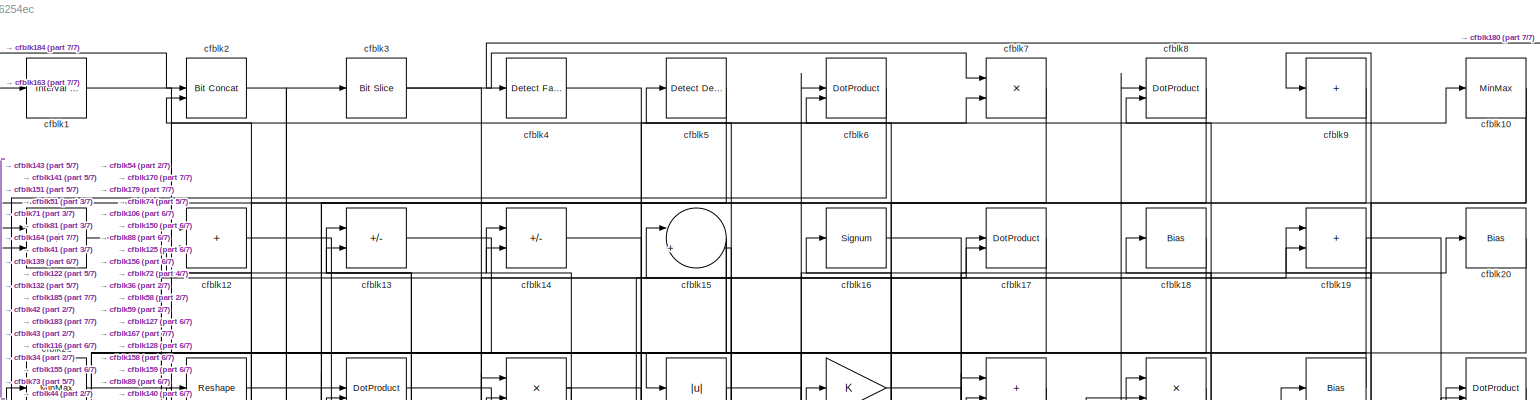
[diagram: root canvas - part 1/7, full width, top band]
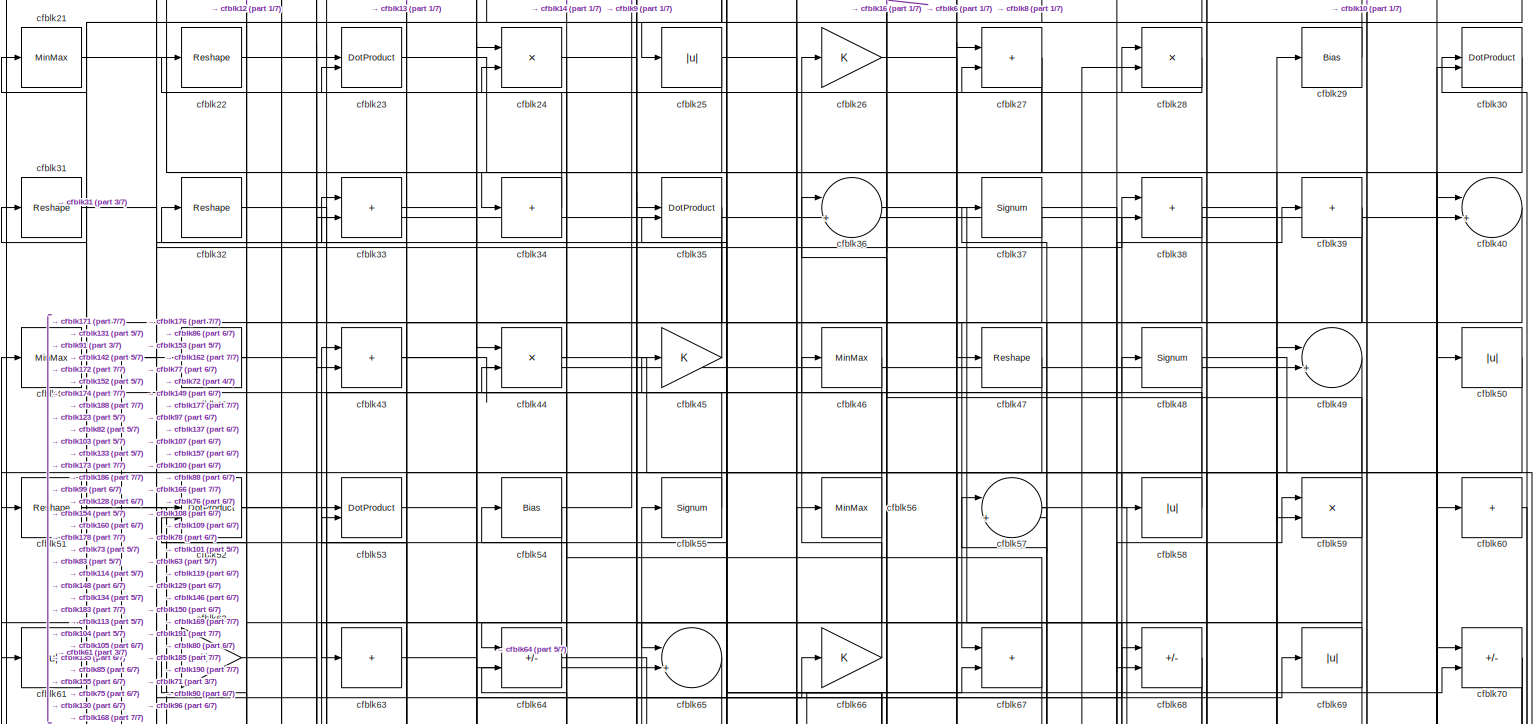
[diagram: root canvas - part 2/7, full width, top band]
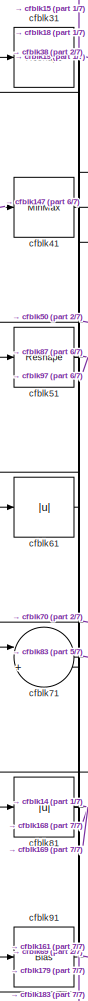
[diagram: root canvas - part 3/7, top left region]
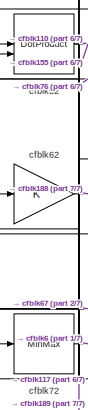
[diagram: root canvas - part 4/7, top left region]
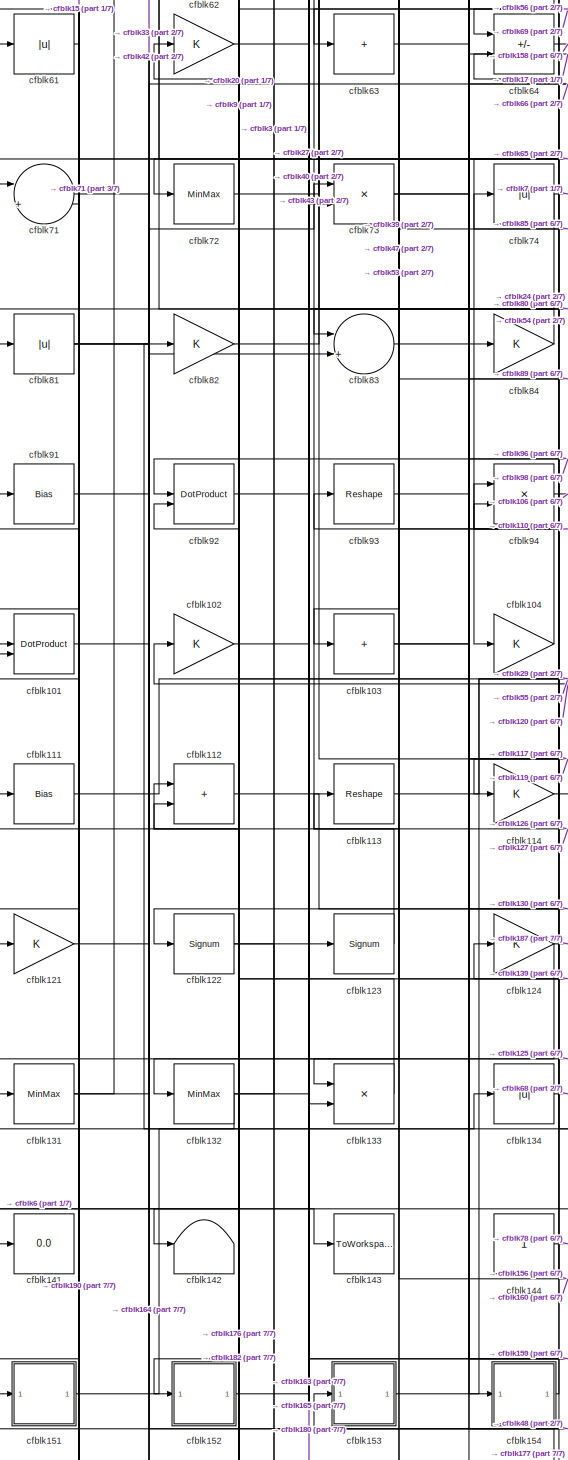
[diagram: root canvas - part 5/7, middle left region]
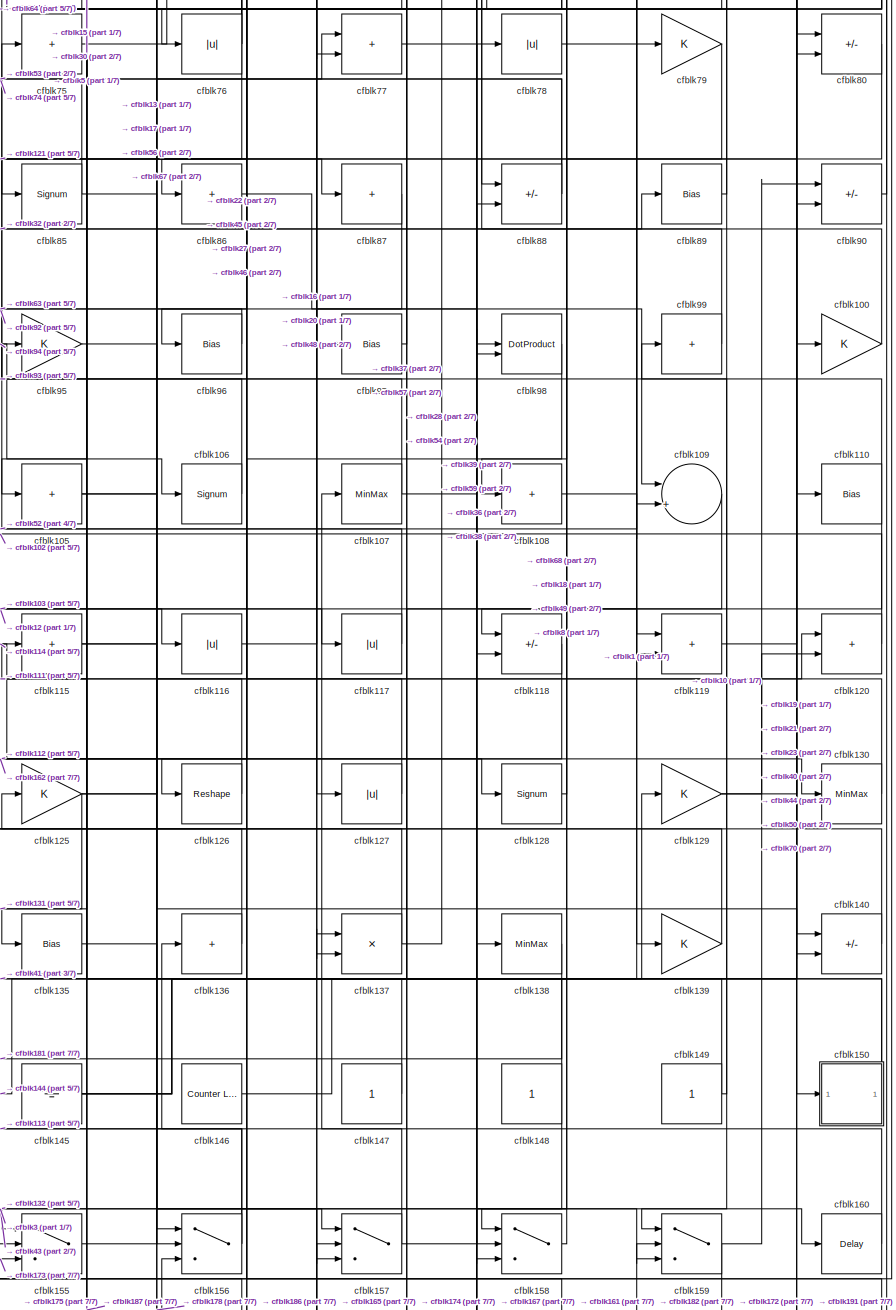
[diagram: root canvas - part 6/7, middle right region]
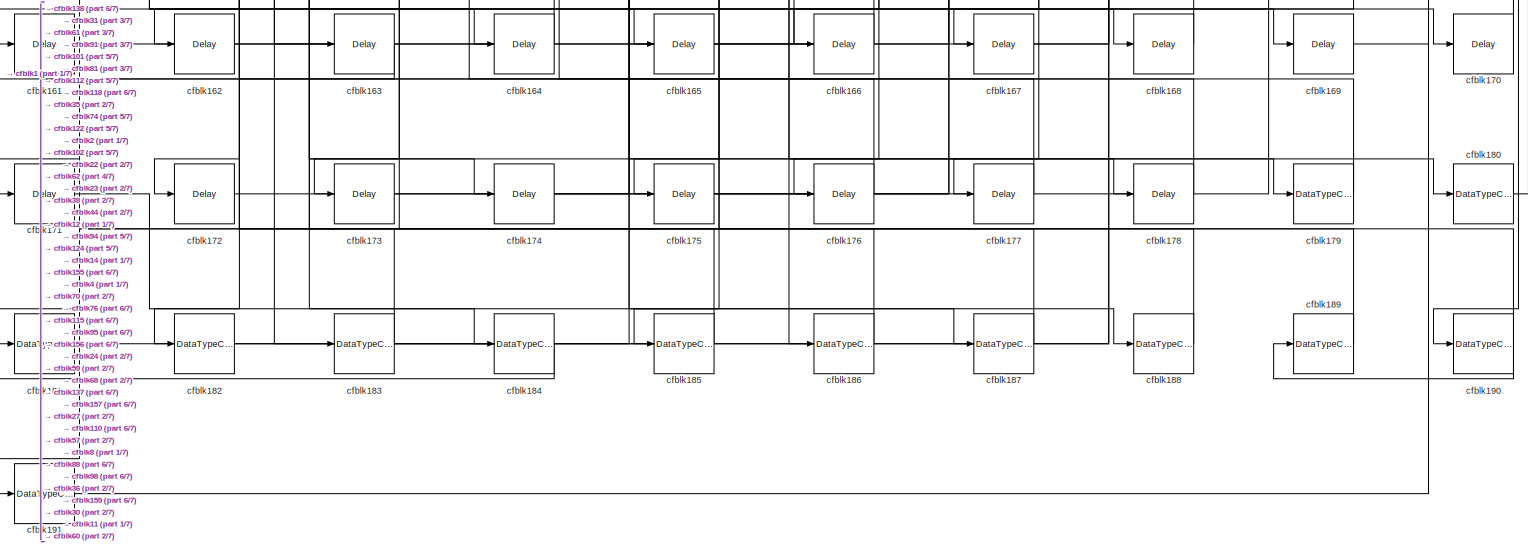
[diagram: root canvas - part 7/7, full width, bottom band]
MODEL slx_2424406254ec
KIND model
CONFIG AbsTol = auto
CONFIG EnableMultiTasking = off
CONFIG FixedStep = auto
CONFIG MaxStep = auto
CONFIG MinStep = auto
CONFIG RelTol = 1e-3
CONFIG SampleTimeConstraint = Unconstrained
CONFIG SolverName = VariableStepAuto
CONFIG StartTime = 0.0
CONFIG StopTime = 10.0
BLOCK [Reference] cfblk1  REF=hdlsllib/Logic and Bit
Operations/Interval Test
  SourceBlock = hdlsllib/Logic and Bit\nOperations/Interval Test
  SourceType = Interval Test
BLOCK [MinMax] cfblk10
BLOCK [Gain] cfblk100
BLOCK [DotProduct] cfblk101
  OutDataTypeStr = Inherit: Inherit via internal rule
BLOCK [Gain] cfblk102
BLOCK [Sum] cfblk103
  IconShape = rectangular
  Inputs = +
BLOCK [Gain] cfblk104
BLOCK [Sum] cfblk105
  IconShape = rectangular
  Inputs = +
BLOCK [Signum] cfblk106
BLOCK [MinMax] cfblk107
BLOCK [Sum] cfblk108
  IconShape = rectangular
  Inputs = +
BLOCK [Sum] cfblk109
  Inputs = |++
BLOCK [Sum] cfblk11
  IconShape = rectangular
  Inputs = +-
BLOCK [Bias] cfblk110
  Bias = 0.0
  SaturateOnIntegerOverflow = off
BLOCK [Bias] cfblk111
  Bias = 0.0
  SaturateOnIntegerOverflow = off
BLOCK [Sum] cfblk112
  IconShape = rectangular
BLOCK [Reshape] cfblk113
BLOCK [Gain] cfblk114
BLOCK [Sum] cfblk115
  IconShape = rectangular
  Inputs = +
BLOCK [Abs] cfblk116
  SaturateOnIntegerOverflow = off
BLOCK [Abs] cfblk117
  SaturateOnIntegerOverflow = off
BLOCK [Sum] cfblk118
  IconShape = rectangular
  Inputs = +-
BLOCK [Sum] cfblk119
  IconShape = rectangular
BLOCK [Sum] cfblk12
  IconShape = rectangular
BLOCK [Sum] cfblk120
  IconShape = rectangular
BLOCK [Gain] cfblk121
BLOCK [Signum] cfblk122
BLOCK [Signum] cfblk123
BLOCK [Gain] cfblk124
BLOCK [Gain] cfblk125
BLOCK [Reshape] cfblk126
BLOCK [Abs] cfblk127
  SaturateOnIntegerOverflow = off
BLOCK [Signum] cfblk128
BLOCK [Gain] cfblk129
BLOCK [Sum] cfblk13
  IconShape = rectangular
  Inputs = +-
BLOCK [MinMax] cfblk130
BLOCK [MinMax] cfblk131
BLOCK [MinMax] cfblk132
BLOCK [Product] cfblk133
  Inputs = */
  RndMeth = Zero
  SaturateOnIntegerOverflow = on
BLOCK [Abs] cfblk134
  SaturateOnIntegerOverflow = off
BLOCK [Bias] cfblk135
  Bias = 0.0
  SaturateOnIntegerOverflow = off
BLOCK [Sum] cfblk136
  IconShape = rectangular
  Inputs = +
BLOCK [Product] cfblk137
  Inputs = */
  RndMeth = Zero
  SaturateOnIntegerOverflow = on
BLOCK [MinMax] cfblk138
BLOCK [Gain] cfblk139
BLOCK [Sum] cfblk14
  IconShape = rectangular
  Inputs = +-
BLOCK [Sum] cfblk140
  IconShape = rectangular
  Inputs = +-
BLOCK [Display] cfblk141
  Decimation = 1
BLOCK [Terminator] cfblk142
BLOCK [ToWorkspace] cfblk143
  MaxDataPoints = inf
  SampleTime = -1
  SaveFormat = Timeseries
  VariableName = simout
BLOCK [Constant] cfblk144
  SampleTime = -1
BLOCK [Ground] cfblk145
BLOCK [Reference] cfblk146  REF=hdlsllib/Sources/Counter
Limited
  SourceBlock = hdlsllib/Sources/Counter\nLimited
  SourceType = Counter Limited
BLOCK [Constant] cfblk147
  SampleTime = -1
BLOCK [Constant] cfblk148
  SampleTime = -1
BLOCK [Constant] cfblk149
  SampleTime = -1
BLOCK [Sum] cfblk15
  Inputs = |++
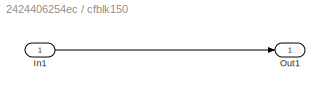
BLOCK [SubSystem] cfblk150
  LibrarySourceBlock = hdlsllib/Ports &\nSubsystems/Subsystem
BLOCK [Inport] cfblk150/In1
BLOCK [Outport] cfblk150/Out1
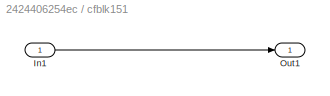
BLOCK [SubSystem] cfblk151
  LibrarySourceBlock = hdlsllib/Ports &\nSubsystems/Subsystem
BLOCK [Inport] cfblk151/In1
BLOCK [Outport] cfblk151/Out1
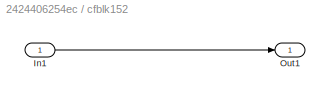
BLOCK [SubSystem] cfblk152
  LibrarySourceBlock = hdlsllib/Ports &\nSubsystems/Subsystem
BLOCK [Inport] cfblk152/In1
BLOCK [Outport] cfblk152/Out1
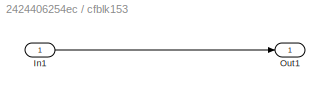
BLOCK [SubSystem] cfblk153
  LibrarySourceBlock = hdlsllib/Ports &\nSubsystems/Subsystem
BLOCK [Inport] cfblk153/In1
BLOCK [Outport] cfblk153/Out1
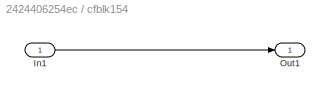
BLOCK [SubSystem] cfblk154
  LibrarySourceBlock = hdlsllib/Ports &\nSubsystems/Subsystem
BLOCK [Inport] cfblk154/In1
BLOCK [Outport] cfblk154/Out1
BLOCK [Switch] cfblk155
  InputSameDT = off
  SaturateOnIntegerOverflow = off
BLOCK [Switch] cfblk156
  InputSameDT = off
  SaturateOnIntegerOverflow = off
BLOCK [Switch] cfblk157
  InputSameDT = off
  SaturateOnIntegerOverflow = off
BLOCK [Switch] cfblk158
  InputSameDT = off
  SaturateOnIntegerOverflow = off
BLOCK [Switch] cfblk159
  InputSameDT = off
  SaturateOnIntegerOverflow = off
BLOCK [Signum] cfblk16
BLOCK [Delay] cfblk160
  InputPortMap = u0
  SampleTime = 1
BLOCK [Delay] cfblk161
  InputPortMap = u0
  SampleTime = 1
BLOCK [Delay] cfblk162
  InputPortMap = u0
  SampleTime = 1
BLOCK [Delay] cfblk163
  InputPortMap = u0
  SampleTime = 1
BLOCK [Delay] cfblk164
  InputPortMap = u0
  SampleTime = 1
BLOCK [Delay] cfblk165
  InputPortMap = u0
  SampleTime = 1
BLOCK [Delay] cfblk166
  InputPortMap = u0
  SampleTime = 1
BLOCK [Delay] cfblk167
  InputPortMap = u0
  SampleTime = 1
BLOCK [Delay] cfblk168
  InputPortMap = u0
  SampleTime = 1
BLOCK [Delay] cfblk169
  InputPortMap = u0
  SampleTime = 1
BLOCK [DotProduct] cfblk17
  OutDataTypeStr = Inherit: Inherit via internal rule
BLOCK [Delay] cfblk170
  InputPortMap = u0
  SampleTime = 1
BLOCK [Delay] cfblk171
  InputPortMap = u0
  SampleTime = 1
BLOCK [Delay] cfblk172
  InputPortMap = u0
  SampleTime = 1
BLOCK [Delay] cfblk173
  InputPortMap = u0
  SampleTime = 1
BLOCK [Delay] cfblk174
  InputPortMap = u0
  SampleTime = 1
BLOCK [Delay] cfblk175
  InputPortMap = u0
  SampleTime = 1
BLOCK [Delay] cfblk176
  InputPortMap = u0
  SampleTime = 1
BLOCK [Delay] cfblk177
  InputPortMap = u0
  SampleTime = 1
BLOCK [Delay] cfblk178
  InputPortMap = u0
  SampleTime = 1
BLOCK [DataTypeConversion] cfblk179
  OutDataTypeStr = uint8
  RndMeth = Floor
  SaturateOnIntegerOverflow = off
BLOCK [Bias] cfblk18
  Bias = 0.0
  SaturateOnIntegerOverflow = off
BLOCK [DataTypeConversion] cfblk180
  OutDataTypeStr = uint8
  RndMeth = Floor
  SaturateOnIntegerOverflow = off
BLOCK [DataTypeConversion] cfblk181
  OutDataTypeStr = uint8
  RndMeth = Floor
  SaturateOnIntegerOverflow = off
BLOCK [DataTypeConversion] cfblk182
  OutDataTypeStr = uint8
  RndMeth = Floor
  SaturateOnIntegerOverflow = off
BLOCK [DataTypeConversion] cfblk183
  RndMeth = Floor
  SaturateOnIntegerOverflow = off
BLOCK [DataTypeConversion] cfblk184
  OutDataTypeStr = uint8
  RndMeth = Floor
  SaturateOnIntegerOverflow = off
BLOCK [DataTypeConversion] cfblk185
  OutDataTypeStr = uint8
  RndMeth = Floor
  SaturateOnIntegerOverflow = off
BLOCK [DataTypeConversion] cfblk186
  OutDataTypeStr = uint8
  RndMeth = Floor
  SaturateOnIntegerOverflow = off
BLOCK [DataTypeConversion] cfblk187
  OutDataTypeStr = uint8
  RndMeth = Floor
  SaturateOnIntegerOverflow = off
BLOCK [DataTypeConversion] cfblk188
  OutDataTypeStr = uint8
  RndMeth = Floor
  SaturateOnIntegerOverflow = off
BLOCK [DataTypeConversion] cfblk189
  OutDataTypeStr = uint8
  RndMeth = Floor
  SaturateOnIntegerOverflow = off
BLOCK [Sum] cfblk19
  IconShape = rectangular
BLOCK [DataTypeConversion] cfblk190
  RndMeth = Floor
  SaturateOnIntegerOverflow = off
BLOCK [DataTypeConversion] cfblk191
  OutDataTypeStr = uint8
  RndMeth = Floor
  SaturateOnIntegerOverflow = off
BLOCK [Reference] cfblk2  REF=hdlsllib/Logic and Bit
Operations/Bit Concat
  SourceBlock = hdlsllib/Logic and Bit\nOperations/Bit Concat
  SourceType = Bit Concat
BLOCK [Bias] cfblk20
  Bias = 0.0
  SaturateOnIntegerOverflow = off
BLOCK [MinMax] cfblk21
BLOCK [Reshape] cfblk22
BLOCK [DotProduct] cfblk23
  OutDataTypeStr = Inherit: Inherit via internal rule
BLOCK [Product] cfblk24
  Inputs = */
  RndMeth = Zero
  SaturateOnIntegerOverflow = on
BLOCK [Abs] cfblk25
  SaturateOnIntegerOverflow = off
BLOCK [Gain] cfblk26
BLOCK [Sum] cfblk27
  IconShape = rectangular
BLOCK [Product] cfblk28
  Inputs = */
  RndMeth = Zero
  SaturateOnIntegerOverflow = on
BLOCK [Bias] cfblk29
  Bias = 0.0
  SaturateOnIntegerOverflow = off
BLOCK [Reference] cfblk3  REF=hdlsllib/Logic and Bit
Operations/Bit Slice
  SourceBlock = hdlsllib/Logic and Bit\nOperations/Bit Slice
  SourceType = Bit Slice
BLOCK [DotProduct] cfblk30
  OutDataTypeStr = Inherit: Inherit via internal rule
BLOCK [Reshape] cfblk31
BLOCK [Reshape] cfblk32
BLOCK [Sum] cfblk33
  IconShape = rectangular
BLOCK [Sum] cfblk34
  IconShape = rectangular
  Inputs = +
BLOCK [DotProduct] cfblk35
  OutDataTypeStr = Inherit: Inherit via internal rule
BLOCK [Sum] cfblk36
  Inputs = |++
BLOCK [Signum] cfblk37
BLOCK [Sum] cfblk38
  IconShape = rectangular
BLOCK [Sum] cfblk39
  IconShape = rectangular
  Inputs = +
BLOCK [Reference] cfblk4  REF=hdlsllib/Logic and Bit
Operations/Detect Fall
Negative
  SourceBlock = hdlsllib/Logic and Bit\nOperations/Detect Fall\nNegative
  SourceType = Detect Fall Negative
BLOCK [Sum] cfblk40
  Inputs = |++
BLOCK [MinMax] cfblk41
BLOCK [Sum] cfblk42
  IconShape = rectangular
  Inputs = +
BLOCK [Sum] cfblk43
  IconShape = rectangular
BLOCK [Product] cfblk44
  Inputs = */
  RndMeth = Zero
  SaturateOnIntegerOverflow = on
BLOCK [Gain] cfblk45
BLOCK [MinMax] cfblk46
BLOCK [Reshape] cfblk47
BLOCK [Signum] cfblk48
BLOCK [Sum] cfblk49
  Inputs = |++
BLOCK [Reference] cfblk5  REF=simulink/Logic and Bit
Operations/Detect
Decrease
  LibrarySourceBlock = hdlsllib/Logic and Bit\nOperations/Detect\nDecrease
  SourceBlock = simulink/Logic and Bit\nOperations/Detect\nDecrease
  SourceType = Detect Decrease
BLOCK [Abs] cfblk50
  SaturateOnIntegerOverflow = off
BLOCK [Reshape] cfblk51
BLOCK [DotProduct] cfblk52
  OutDataTypeStr = Inherit: Inherit via internal rule
BLOCK [DotProduct] cfblk53
  OutDataTypeStr = Inherit: Inherit via internal rule
BLOCK [Bias] cfblk54
  Bias = 0.0
  SaturateOnIntegerOverflow = off
BLOCK [Signum] cfblk55
BLOCK [MinMax] cfblk56
BLOCK [Sum] cfblk57
  Inputs = |++
BLOCK [Abs] cfblk58
  SaturateOnIntegerOverflow = off
BLOCK [Product] cfblk59
  Inputs = */
  RndMeth = Zero
  SaturateOnIntegerOverflow = on
BLOCK [DotProduct] cfblk6
  OutDataTypeStr = Inherit: Inherit via internal rule
BLOCK [Sum] cfblk60
  IconShape = rectangular
  Inputs = +
BLOCK [Abs] cfblk61
  SaturateOnIntegerOverflow = off
BLOCK [Gain] cfblk62
BLOCK [Sum] cfblk63
  IconShape = rectangular
  Inputs = +
BLOCK [Sum] cfblk64
  IconShape = rectangular
  Inputs = +-
BLOCK [Sum] cfblk65
  Inputs = |++
BLOCK [Gain] cfblk66
BLOCK [Sum] cfblk67
  IconShape = rectangular
BLOCK [Sum] cfblk68
  IconShape = rectangular
  Inputs = +-
BLOCK [Abs] cfblk69
  SaturateOnIntegerOverflow = off
BLOCK [Product] cfblk7
  Inputs = */
  RndMeth = Zero
  SaturateOnIntegerOverflow = on
BLOCK [Sum] cfblk70
  IconShape = rectangular
  Inputs = +-
BLOCK [Sum] cfblk71
  Inputs = |++
BLOCK [MinMax] cfblk72
BLOCK [Product] cfblk73
  Inputs = */
  RndMeth = Zero
  SaturateOnIntegerOverflow = on
BLOCK [Abs] cfblk74
  SaturateOnIntegerOverflow = off
BLOCK [Sum] cfblk75
  IconShape = rectangular
  Inputs = +
BLOCK [Abs] cfblk76
  SaturateOnIntegerOverflow = off
BLOCK [Sum] cfblk77
  IconShape = rectangular
BLOCK [Abs] cfblk78
  SaturateOnIntegerOverflow = off
BLOCK [Gain] cfblk79
BLOCK [DotProduct] cfblk8
  OutDataTypeStr = Inherit: Inherit via internal rule
BLOCK [Sum] cfblk80
  IconShape = rectangular
  Inputs = +-
BLOCK [Abs] cfblk81
  SaturateOnIntegerOverflow = off
BLOCK [Gain] cfblk82
BLOCK [Sum] cfblk83
  Inputs = |++
BLOCK [Gain] cfblk84
BLOCK [Signum] cfblk85
BLOCK [Sum] cfblk86
  IconShape = rectangular
  Inputs = +
BLOCK [Sum] cfblk87
  IconShape = rectangular
  Inputs = +
BLOCK [Sum] cfblk88
  IconShape = rectangular
  Inputs = +-
BLOCK [Bias] cfblk89
  Bias = 0.0
  SaturateOnIntegerOverflow = off
BLOCK [Sum] cfblk9
  IconShape = rectangular
  Inputs = +
BLOCK [Sum] cfblk90
  IconShape = rectangular
  Inputs = +-
BLOCK [Bias] cfblk91
  Bias = 0.0
  SaturateOnIntegerOverflow = off
BLOCK [DotProduct] cfblk92
  OutDataTypeStr = Inherit: Inherit via internal rule
BLOCK [Reshape] cfblk93
BLOCK [Product] cfblk94
  Inputs = */
  RndMeth = Zero
  SaturateOnIntegerOverflow = on
BLOCK [Gain] cfblk95
BLOCK [Bias] cfblk96
  Bias = 0.0
  SaturateOnIntegerOverflow = off
BLOCK [Bias] cfblk97
  Bias = 0.0
  SaturateOnIntegerOverflow = off
BLOCK [DotProduct] cfblk98
  OutDataTypeStr = Inherit: Inherit via internal rule
BLOCK [Sum] cfblk99
  IconShape = rectangular
  Inputs = +
LINE cfblk100:1 -> cfblk38:1
LINE cfblk101:1 -> cfblk164:1
LINE cfblk102:1 -> cfblk165:1
NET cfblk103:1 -> cfblk117:1, cfblk119:2
LINE cfblk104:1 -> cfblk53:1
NET cfblk105:1 -> cfblk140:2, cfblk56:1
LINE cfblk106:1 -> cfblk5:1
NET cfblk107:1 -> cfblk59:1, cfblk75:1
LINE cfblk108:1 -> cfblk119:1
LINE cfblk109:1 -> cfblk118:1
NET cfblk10:1 -> cfblk159:1, cfblk43:2
NET cfblk110:1 -> cfblk167:1, cfblk93:1
LINE cfblk111:1 -> cfblk84:1
LINE cfblk112:1 -> cfblk130:1
LINE cfblk113:1 -> cfblk55:1
LINE cfblk114:1 -> cfblk156:2
NET cfblk115:1 -> cfblk178:1, cfblk77:1
LINE cfblk116:1 -> cfblk20:1
LINE cfblk117:1 -> cfblk52:1
LINE cfblk118:1 -> cfblk162:1
LINE cfblk119:1 -> cfblk50:1
LINE cfblk11:1 -> cfblk10:1
LINE cfblk120:1 -> cfblk102:1
LINE cfblk121:1 -> cfblk73:1
NET cfblk122:1 -> cfblk163:1, cfblk180:1
LINE cfblk123:1 -> cfblk43:1
NET cfblk124:1 -> cfblk152:1, cfblk187:1
NET cfblk125:1 -> cfblk120:1, cfblk131:1, cfblk17:2
LINE cfblk126:1 -> cfblk111:1
LINE cfblk127:1 -> cfblk94:1
LINE cfblk128:1 -> cfblk18:1
NET cfblk129:1 -> cfblk120:2, cfblk70:1
LINE cfblk12:1 -> cfblk116:1
LINE cfblk130:1 -> cfblk46:1
NET cfblk131:1 -> cfblk33:2, cfblk42:1
NET cfblk132:1 -> cfblk159:3, cfblk3:1, cfblk82:1
LINE cfblk133:1 -> cfblk92:2
LINE cfblk134:1 -> cfblk68:1
LINE cfblk135:1 -> cfblk157:1
LINE cfblk136:1 -> cfblk125:1
NET cfblk137:1 -> cfblk28:2, cfblk54:1
LINE cfblk138:1 -> cfblk181:1
LINE cfblk139:1 -> cfblk112:1
LINE cfblk13:1 -> cfblk156:1
LINE cfblk140:1 -> cfblk13:1
LINE cfblk144:1 -> cfblk78:1
NET cfblk145:1 -> cfblk129:1, cfblk79:1, cfblk90:2
LINE cfblk146:1 -> cfblk40:1
LINE cfblk147:1 -> cfblk41:1
NET cfblk148:1 -> cfblk158:3, cfblk44:2
NET cfblk149:1 -> cfblk57:1, cfblk99:1
LINE cfblk14:1 -> cfblk170:1
LINE cfblk150/In1:1 -> cfblk150/Out1:1
NET cfblk150:1 -> cfblk115:1, cfblk15:2
LINE cfblk151/In1:1 -> cfblk151/Out1:1
LINE cfblk151:1 -> cfblk134:1
LINE cfblk152/In1:1 -> cfblk152/Out1:1
LINE cfblk152:1 -> cfblk40:2
LINE cfblk153/In1:1 -> cfblk153/Out1:1
LINE cfblk153:1 -> cfblk29:1
LINE cfblk154/In1:1 -> cfblk154/Out1:1
LINE cfblk154:1 -> cfblk124:1
LINE cfblk155:1 -> cfblk70:2
NET cfblk156:1 -> cfblk113:1, cfblk136:1
NET cfblk157:1 -> cfblk107:1, cfblk39:1
LINE cfblk158:1 -> cfblk8:2
NET cfblk159:1 -> cfblk191:1, cfblk90:1
NET cfblk15:1 -> cfblk151:1, cfblk51:1
LINE cfblk160:1 -> cfblk64:2
LINE cfblk161:1 -> cfblk88:2
LINE cfblk162:1 -> cfblk27:1
LINE cfblk163:1 -> cfblk1:1
LINE cfblk164:1 -> cfblk12:1
LINE cfblk165:1 -> cfblk156:3
LINE cfblk166:1 -> cfblk24:1
LINE cfblk167:1 -> cfblk8:1
LINE cfblk168:1 -> cfblk36:1
LINE cfblk169:1 -> cfblk30:2
LINE cfblk16:1 -> cfblk127:1
LINE cfblk170:1 -> cfblk11:1
LINE cfblk171:1 -> cfblk184:1
LINE cfblk172:1 -> cfblk159:2
LINE cfblk173:1 -> cfblk155:3
LINE cfblk174:1 -> cfblk137:1
LINE cfblk175:1 -> cfblk157:2
LINE cfblk176:1 -> cfblk112:2
LINE cfblk177:1 -> cfblk94:2
LINE cfblk178:1 -> cfblk44:1
LINE cfblk179:1 -> cfblk91:1
LINE cfblk17:1 -> cfblk141:1
LINE cfblk180:1 -> cfblk4:1
LINE cfblk181:1 -> cfblk98:1
LINE cfblk182:1 -> cfblk138:1
NET cfblk183:1 -> cfblk31:1, cfblk35:1
LINE cfblk184:1 -> cfblk2:1
LINE cfblk185:1 -> cfblk2:2
LINE cfblk186:1 -> cfblk23:2
LINE cfblk187:1 -> cfblk95:1
LINE cfblk188:1 -> cfblk23:1
LINE cfblk189:1 -> cfblk62:1
LINE cfblk18:1 -> cfblk71:1
NET cfblk190:1 -> cfblk101:2, cfblk189:1
LINE cfblk191:1 -> cfblk60:1
NET cfblk19:1 -> cfblk140:1, cfblk81:1
LINE cfblk1:1 -> cfblk139:1
LINE cfblk20:1 -> cfblk122:1
LINE cfblk21:1 -> cfblk80:2
LINE cfblk22:1 -> cfblk174:1
LINE cfblk23:1 -> cfblk80:1
NET cfblk24:1 -> cfblk114:1, cfblk68:2
NET cfblk25:1 -> cfblk34:1, cfblk58:1
LINE cfblk26:1 -> cfblk47:1
NET cfblk27:1 -> cfblk133:2, cfblk86:1
LINE cfblk28:1 -> cfblk27:2
LINE cfblk29:1 -> cfblk25:1
LINE cfblk2:1 -> cfblk183:1
LINE cfblk30:1 -> cfblk85:1
LINE cfblk31:1 -> cfblk38:2
LINE cfblk32:1 -> cfblk67:1
LINE cfblk33:1 -> cfblk154:1
LINE cfblk34:1 -> cfblk13:2
NET cfblk35:1 -> cfblk171:1, cfblk172:1
LINE cfblk36:1 -> cfblk88:1
NET cfblk37:1 -> cfblk135:1, cfblk59:2
NET cfblk38:1 -> cfblk109:2, cfblk173:1
NET cfblk39:1 -> cfblk103:1, cfblk57:2
NET cfblk3:1 -> cfblk155:1, cfblk7:1
LINE cfblk40:1 -> cfblk65:1
LINE cfblk41:1 -> cfblk19:2
NET cfblk42:1 -> cfblk12:2, cfblk28:1
NET cfblk43:1 -> cfblk160:1, cfblk49:2
NET cfblk44:1 -> cfblk14:1, cfblk150:1
LINE cfblk45:1 -> cfblk33:1
LINE cfblk46:1 -> cfblk105:1
LINE cfblk47:1 -> cfblk133:1
NET cfblk48:1 -> cfblk153:1, cfblk77:2
LINE cfblk49:1 -> cfblk108:1
LINE cfblk4:1 -> cfblk179:1
LINE cfblk50:1 -> cfblk61:1
NET cfblk51:1 -> cfblk87:1, cfblk97:1
NET cfblk52:1 -> cfblk110:1, cfblk155:2
LINE cfblk53:1 -> cfblk128:1
NET cfblk54:1 -> cfblk142:1, cfblk9:1
LINE cfblk55:1 -> cfblk21:1
NET cfblk56:1 -> cfblk35:2, cfblk64:1
NET cfblk57:1 -> cfblk100:1, cfblk177:1
LINE cfblk58:1 -> cfblk16:1
NET cfblk59:1 -> cfblk176:1, cfblk6:2
LINE cfblk5:1 -> cfblk11:2
LINE cfblk60:1 -> cfblk190:1
LINE cfblk61:1 -> cfblk161:1
LINE cfblk62:1 -> cfblk188:1
LINE cfblk63:1 -> cfblk98:2
LINE cfblk64:1 -> cfblk158:2
LINE cfblk65:1 -> cfblk104:1
LINE cfblk66:1 -> cfblk26:1
NET cfblk67:1 -> cfblk24:2, cfblk72:1
NET cfblk68:1 -> cfblk166:1, cfblk76:1
NET cfblk69:1 -> cfblk101:1, cfblk63:1
LINE cfblk6:1 -> cfblk143:1
NET cfblk70:1 -> cfblk185:1, cfblk71:2, cfblk96:1
LINE cfblk71:1 -> cfblk83:2
LINE cfblk72:1 -> cfblk6:1
NET cfblk73:1 -> cfblk17:1, cfblk65:2
NET cfblk74:1 -> cfblk182:1, cfblk7:2
LINE cfblk75:1 -> cfblk67:2
NET cfblk76:1 -> cfblk175:1, cfblk22:1, cfblk45:1, cfblk52:2
LINE cfblk77:1 -> cfblk118:2
LINE cfblk78:1 -> cfblk49:1
LINE cfblk79:1 -> cfblk158:1
LINE cfblk7:1 -> cfblk73:2
LINE cfblk80:1 -> cfblk121:1
NET cfblk81:1 -> cfblk14:2, cfblk168:1, cfblk169:1
LINE cfblk82:1 -> cfblk48:1
LINE cfblk83:1 -> cfblk66:1
LINE cfblk84:1 -> cfblk83:1
NET cfblk85:1 -> cfblk157:3, cfblk74:1
LINE cfblk86:1 -> cfblk109:1
LINE cfblk87:1 -> cfblk137:2
NET cfblk88:1 -> cfblk15:1, cfblk53:2
LINE cfblk89:1 -> cfblk19:1
LINE cfblk8:1 -> cfblk36:2
LINE cfblk90:1 -> cfblk30:1
LINE cfblk91:1 -> cfblk69:1
LINE cfblk92:1 -> cfblk123:1
LINE cfblk93:1 -> cfblk89:1
LINE cfblk94:1 -> cfblk106:1
LINE cfblk95:1 -> cfblk186:1
LINE cfblk96:1 -> cfblk92:1
LINE cfblk97:1 -> cfblk37:1
LINE cfblk98:1 -> cfblk126:1
LINE cfblk99:1 -> cfblk32:1
LINE cfblk9:1 -> cfblk132:1
note: NET lines group one-source signal fan-out (src -> all destinations, sorted); 1:1 wires keep LINE
